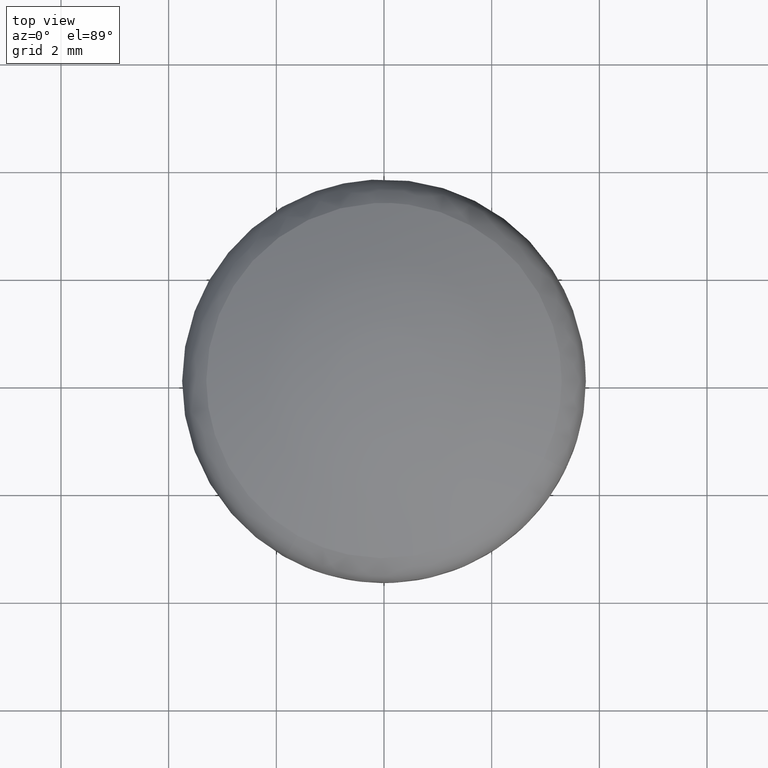
[diagram: clean part render]
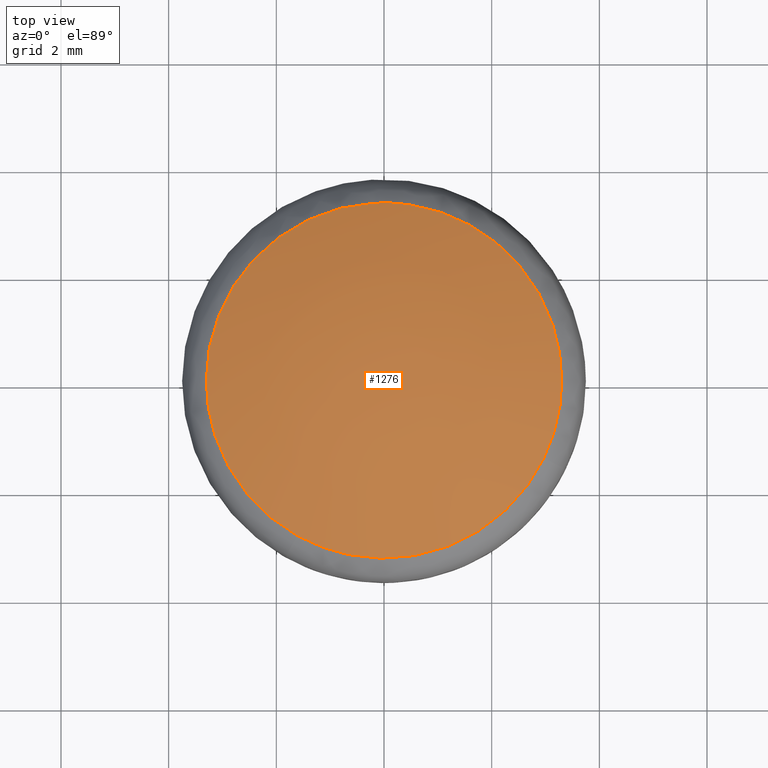
[diagram: same view with one face highlighted and labeled with its STEP entity id]
A machine part, top view. The second image highlights one B-rep face of the part: STEP entity #1276.
In plain terms, the highlighted face is a freeform B-spline surface patch.
Its self-contained STEP definition (entity closure, byte-faithful):
#290=CARTESIAN_POINT('',(-1.610164110022238,-2.881206936463691,0.738222216056095));
#291=VERTEX_POINT('',#290);
#305=CARTESIAN_POINT('',(-3.300602985438615,0.0,0.738221655529249));
#306=VERTEX_POINT('',#305);
#307=CARTESIAN_POINT('',(-1.610164110022238,-2.881206936463691,0.738222216056095));
#308=CARTESIAN_POINT('',(-3.300602985438614,-1.936503911088885,0.738221655529249));
#309=CARTESIAN_POINT('',(-3.300602985438615,0.0,0.738221655529249));
#317=(BOUNDED_CURVE()B_SPLINE_CURVE(2,(#307,#308,#309),.UNSPECIFIED.,.F.,.U.)B_SPLINE_CURVE_WITH_KNOTS((3,3),(0.833121442956601,1.0),.UNSPECIFIED.)CURVE()GEOMETRIC_REPRESENTATION_ITEM()RATIONAL_B_SPLINE_CURVE((0.869991153567357,0.804489609106459,1.0))REPRESENTATION_ITEM(''));
#318=EDGE_CURVE('',#291,#306,#317,.T.);
#320=CARTESIAN_POINT('',(3.300602985438615,0.0,0.738221655529249));
#321=VERTEX_POINT('',#320);
#322=CARTESIAN_POINT('',(-3.300602985438615,0.0,0.738221655529249));
#323=CARTESIAN_POINT('',(-3.300602985438615,3.300602985438615,0.738221655529249));
#324=CARTESIAN_POINT('',(0.0,3.300602985438615,0.738221655529249));
#325=CARTESIAN_POINT('',(3.300602985438615,3.300602985438615,0.738221655529249));
#326=CARTESIAN_POINT('',(3.300602985438615,0.0,0.738221655529249));
#334=(BOUNDED_CURVE()B_SPLINE_CURVE(2,(#322,#323,#324,#325,#326),.UNSPECIFIED.,.F.,.U.)B_SPLINE_CURVE_WITH_KNOTS((3,2,3),(0.0,0.250000000000000,0.500000000000000),.UNSPECIFIED.)CURVE()GEOMETRIC_REPRESENTATION_ITEM()RATIONAL_B_SPLINE_CURVE((1.0,0.707106781186548,1.0,0.707106781186548,1.0))REPRESENTATION_ITEM(''));
#335=EDGE_CURVE('',#306,#321,#334,.T.);
#337=CARTESIAN_POINT('',(2.968579904268314,-1.442745723865238,0.738222216068880));
#338=VERTEX_POINT('',#337);
#339=CARTESIAN_POINT('',(3.300602985438615,0.0,0.738221655529249));
#340=CARTESIAN_POINT('',(3.300602985438615,-0.759577558923570,0.738221655529249));
#341=CARTESIAN_POINT('',(2.968579904268314,-1.442745723865238,0.738222216068880));
#349=(BOUNDED_CURVE()B_SPLINE_CURVE(2,(#339,#340,#341),.UNSPECIFIED.,.F.,.U.)B_SPLINE_CURVE_WITH_KNOTS((3,3),(0.500000000000000,0.574283295446815),.UNSPECIFIED.)CURVE()GEOMETRIC_REPRESENTATION_ITEM()RATIONAL_B_SPLINE_CURVE((1.0,0.912971705970046,0.877661399761368))REPRESENTATION_ITEM(''));
#350=EDGE_CURVE('',#321,#338,#349,.T.);
#397=CARTESIAN_POINT('',(2.968579904268315,-1.442745723865239,0.738222216068880));
#398=CARTESIAN_POINT('',(2.065651026399974,-3.300602985438614,0.738221655529249));
#399=CARTESIAN_POINT('',(0.0,-3.300602985438615,0.738221655529249));
#400=CARTESIAN_POINT('',(-0.859701657076752,-3.300602985438615,0.738221655529249));
#401=CARTESIAN_POINT('',(-1.610164110022238,-2.881206936463691,0.738222216056095));
#409=(BOUNDED_CURVE()B_SPLINE_CURVE(2,(#397,#398,#399,#400,#401),.UNSPECIFIED.,.F.,.U.)B_SPLINE_CURVE_WITH_KNOTS((3,2,3),(0.574283295446816,0.750000000000000,0.833121442956602),.UNSPECIFIED.)CURVE()GEOMETRIC_REPRESENTATION_ITEM()RATIONAL_B_SPLINE_CURVE((0.877661399761367,0.794135075216502,1.0,0.902617172080089,0.869991153567357))REPRESENTATION_ITEM(''));
#410=EDGE_CURVE('',#338,#291,#409,.T.);
#1246=CARTESIAN_POINT('',(-3.387240256691800,-3.386513096729107,-0.219377749887421));
#1247=CARTESIAN_POINT('',(-1.796157394967951,-3.591543681555787,0.588458513225019));
#1248=CARTESIAN_POINT('',(1.796157517826010,-3.591543681555787,0.588458474841585));
#1249=CARTESIAN_POINT('',(3.387240349812740,-3.386513100733801,-0.219377806493094));
#1250=CARTESIAN_POINT('',(-3.592221484048873,-1.795725167015851,0.588090702784035));
#1251=CARTESIAN_POINT('',(-1.911857821530016,-1.911447442326052,1.500000017814487));
#1252=CARTESIAN_POINT('',(1.911857962669137,-1.911447442326052,1.499999976958563));
#1253=CARTESIAN_POINT('',(3.592221592801609,-1.795725169267876,0.588090643765478));
#1254=CARTESIAN_POINT('',(-3.592221484048873,1.796092404394028,0.588090707695035));
#1255=CARTESIAN_POINT('',(-1.911857821530016,1.911838344328565,1.500000023041968));
#1256=CARTESIAN_POINT('',(1.911857962669137,1.911838344328565,1.499999982186045));
#1257=CARTESIAN_POINT('',(3.592221592801609,1.796092406646513,0.588090648676479));
#1258=CARTESIAN_POINT('',(-3.387161190710105,3.387126613567560,-0.219689199809604));
#1259=CARTESIAN_POINT('',(-1.796112930220867,3.592189264913078,0.588108209192990));
#1260=CARTESIAN_POINT('',(1.796113053071901,3.592189264913078,0.588108170810506));
#1261=CARTESIAN_POINT('',(3.387161283825017,3.387126617572884,-0.219689256414324));
#1269=(BOUNDED_SURFACE()B_SPLINE_SURFACE(2,2,((#1246,#1250,#1254,#1258),(#1247,#1251,#1255,#1259),(#1248,#1252,#1256,#1260),(#1249,#1253,#1257,#1261)),.UNSPECIFIED.,.F.,.F.,.U.)B_SPLINE_SURFACE_WITH_KNOTS((3,1,3),(3,1,3),(1.024443923479319,4.655820328921549,8.287196696752311),(1.025223568749428,4.655820328921548,8.287159606146812),.UNSPECIFIED.)GEOMETRIC_REPRESENTATION_ITEM()RATIONAL_B_SPLINE_SURFACE(((1.128858729860014,1.064443199200087,1.064443199200087,1.128885080636008),(1.064415530659927,1.0,1.0,1.064441881435921),(1.064415530659927,1.0,1.0,1.064441881435921),(1.128858728525091,1.064443197865165,1.064443197865165,1.128885079301086)))REPRESENTATION_ITEM('')SURFACE());
#1270=ORIENTED_EDGE('',*,*,#318,.F.);
#1271=ORIENTED_EDGE('',*,*,#410,.F.);
#1272=ORIENTED_EDGE('',*,*,#350,.F.);
#1273=ORIENTED_EDGE('',*,*,#335,.F.);
#1274=EDGE_LOOP('',(#1270,#1271,#1272,#1273));
#1275=FACE_OUTER_BOUND('',#1274,.T.);
#1276=ADVANCED_FACE('',(#1275),#1269,.T.);